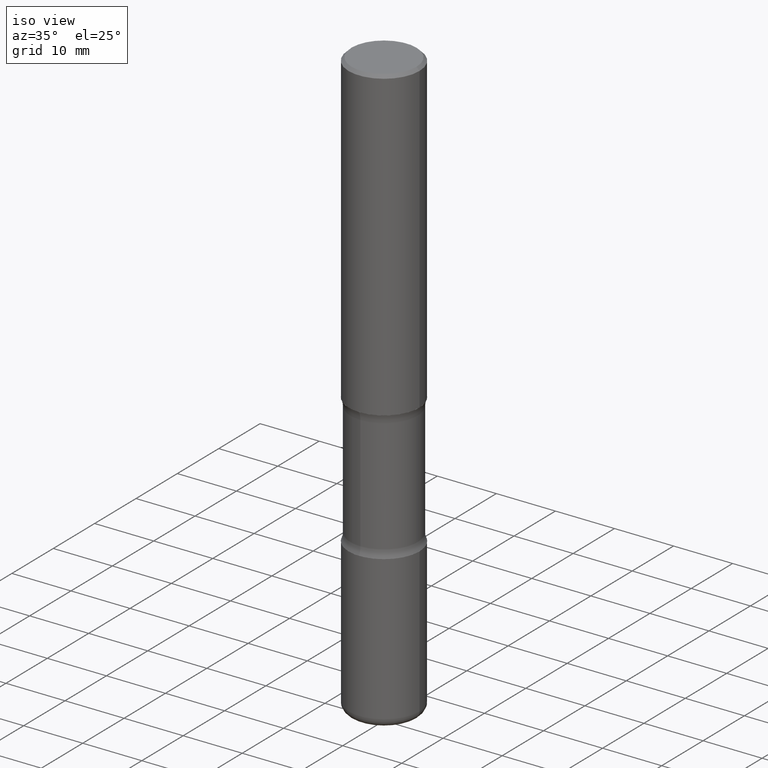
[diagram: clean part render]
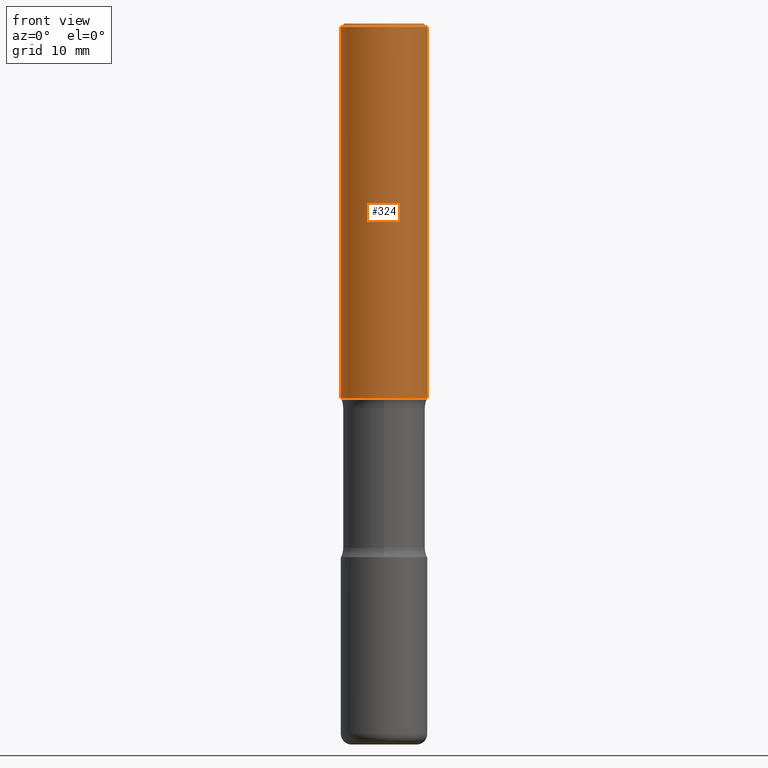
[diagram: tour spotlight — one face highlighted and labeled with its STEP entity id]
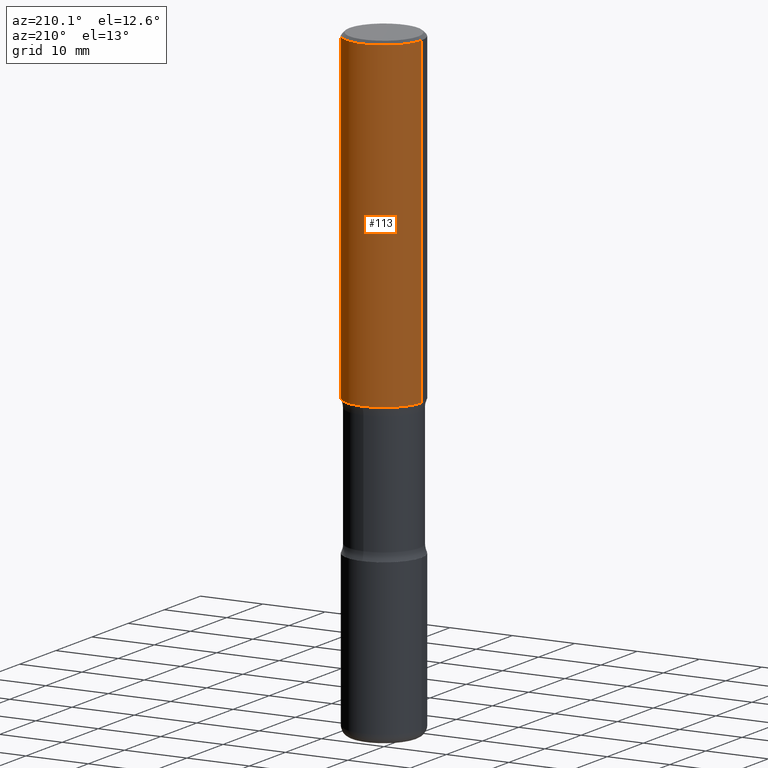
[diagram: tour spotlight — one face highlighted and labeled with its STEP entity id]
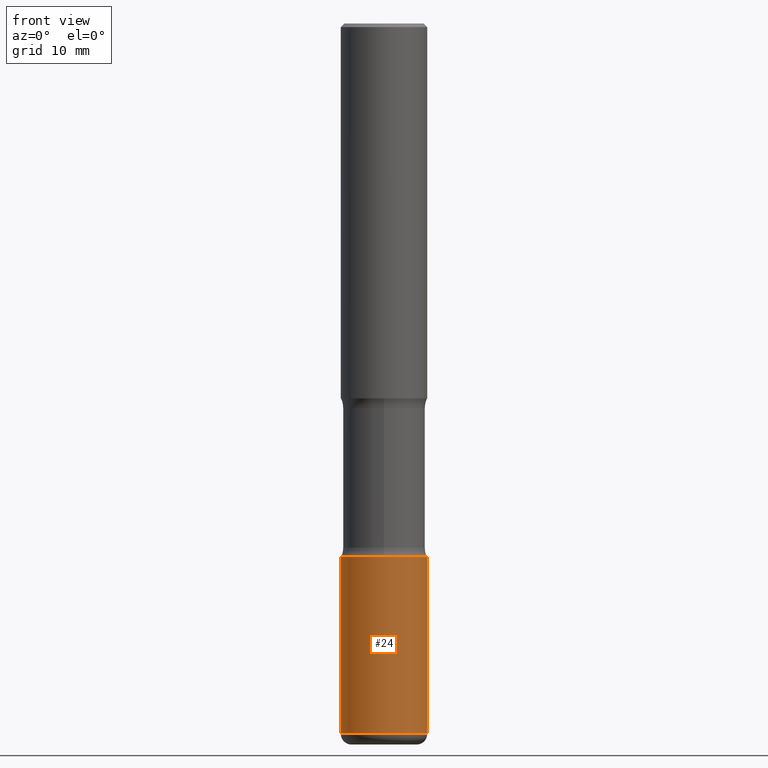
[diagram: tour spotlight — one face highlighted and labeled with its STEP entity id]
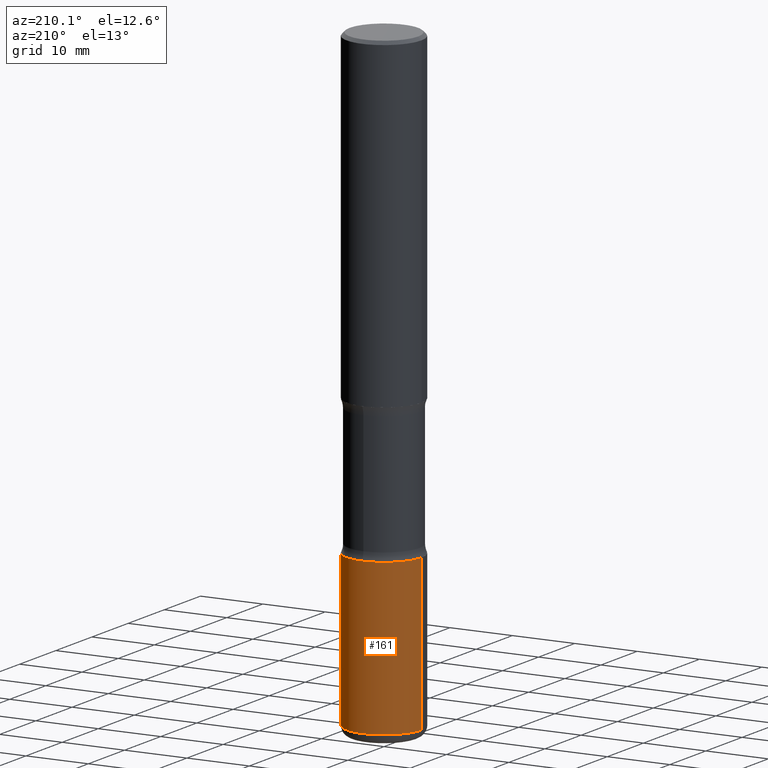
[diagram: tour spotlight — one face highlighted and labeled with its STEP entity id]
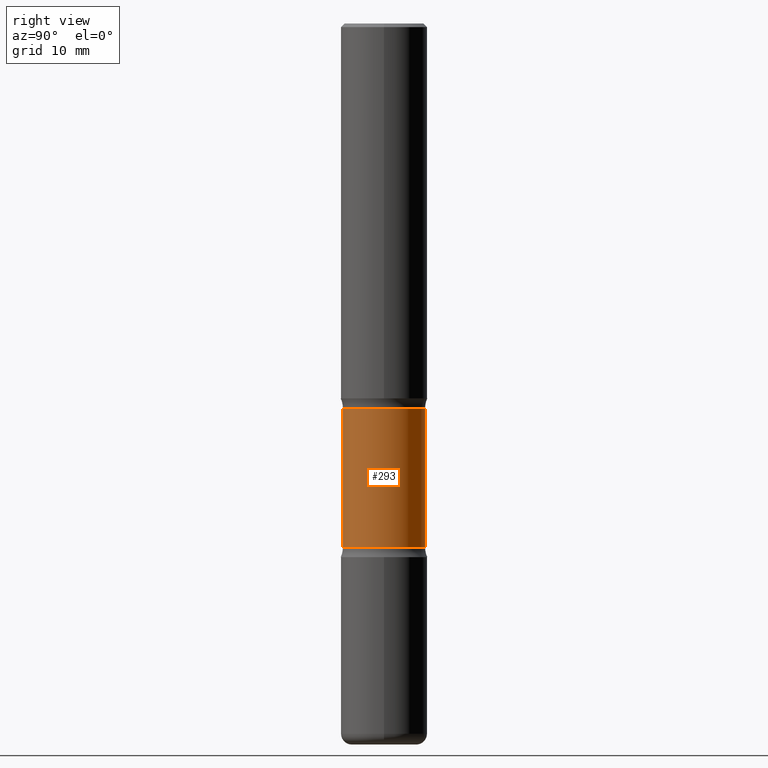
[diagram: tour spotlight — one face highlighted and labeled with its STEP entity id]
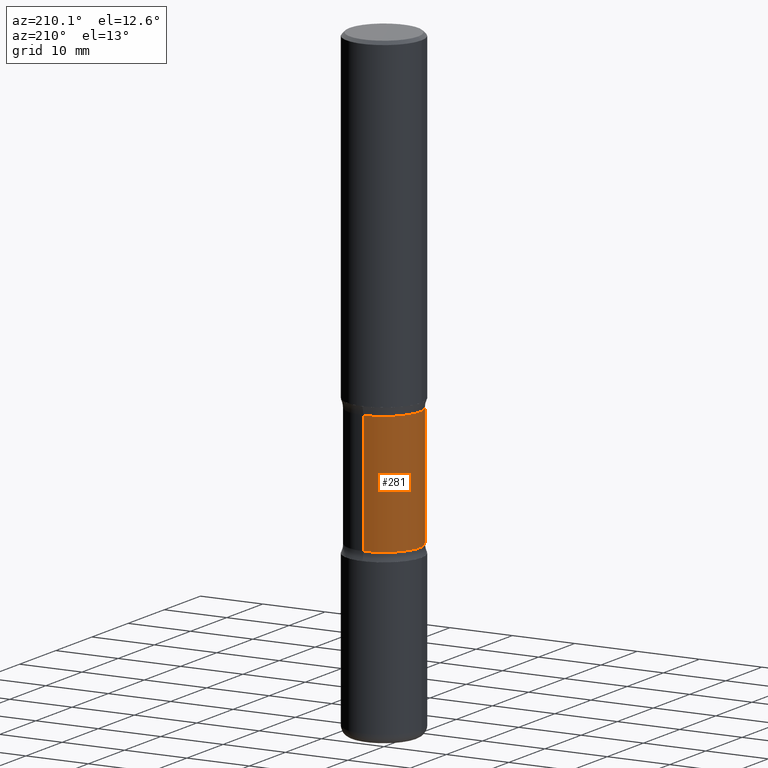
[diagram: tour spotlight — one face highlighted and labeled with its STEP entity id]
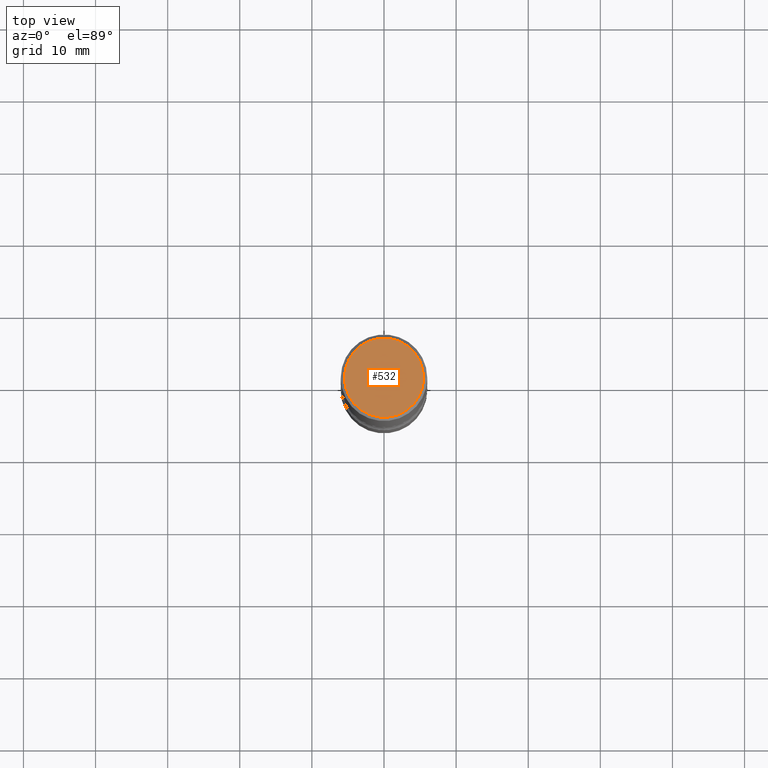
[diagram: tour spotlight — one face highlighted and labeled with its STEP entity id]
A machine part: a face-by-face anatomy tour. The part has 20 B-rep faces; the first image is the clean iso view, then the 7 largest visible faces are spotlighted one at a time (largest first), each with its STEP entity span.

Face 1 — front view, entity #324. In plain terms, the highlighted cylindrical surface (partial cylindrical patch) has radius 5.9995 mm, axis along (-0, 0, 1).
Definition (entity closure, byte-faithful):
#8 = DIRECTION ( 'NONE',  ( -2.445468806185136877E-29, 3.491481338843145188E-15, 1.000000000000000000 ) ) ;
#18 = CARTESIAN_POINT ( 'NONE',  ( 4.890937612370289799E-31, -6.982962677686315028E-17, -0.02000000000000006981 ) ) ;
#50 = CARTESIAN_POINT ( 'NONE',  ( -0.2361999999999998823, 1.579546157692632438E-15, -0.02000000000000006981 ) ) ;
#68 = VERTEX_POINT ( 'NONE', #525 ) ;
#71 = EDGE_CURVE ( 'NONE', #366, #68, #320, .T. ) ;
#75 = DIRECTION ( 'NONE',  ( -2.445468806185136597E-29, 3.491481338843145583E-15, 1.000000000000000000 ) ) ;
#107 = EDGE_LOOP ( 'NONE', ( #376, #503, #512, #435 ) ) ;
#125 = VERTEX_POINT ( 'NONE', #50 ) ;
#127 = CIRCLE ( 'NONE', #297, 0.2361999999999998823 ) ;
#129 = EDGE_CURVE ( 'NONE', #366, #125, #221, .T. ) ;
#158 = CARTESIAN_POINT ( 'NONE',  ( 0.2361999999999999933, -1.649375784469496131E-15, 1.151752954443000088E-29 ) ) ;
#160 = DIRECTION ( 'NONE',  ( 1.000000000000000000, -6.982962677686267499E-15, 0.000000000000000000 ) ) ;
#163 = CARTESIAN_POINT ( 'NONE',  ( 0.000000000000000000, 0.000000000000000000, 0.000000000000000000 ) ) ;
#181 = VECTOR ( 'NONE', #463, 39.37007874015748143 ) ;
#183 = DIRECTION ( 'NONE',  ( -2.445468806185136597E-29, 3.491481338843145583E-15, 1.000000000000000000 ) ) ;
#203 = CARTESIAN_POINT ( 'NONE',  ( -0.2362000000000001598, -1.930493169962915017E-15, -2.047200000000000131 ) ) ;
#209 = CYLINDRICAL_SURFACE ( 'NONE', #416, 0.2361999999999999933 ) ;
#221 = LINE ( 'NONE', #407, #341 ) ;
#263 = DIRECTION ( 'NONE',  ( 1.000000000000000000, -6.982962677686269077E-15, 0.000000000000000000 ) ) ;
#264 = AXIS2_PLACEMENT_3D ( 'NONE', #478, #183, #263 ) ;
#284 = CARTESIAN_POINT ( 'NONE',  ( 0.2361999999999998823, -1.690279253850498179E-15, -0.02000000000000006981 ) ) ;
#294 = DIRECTION ( 'NONE',  ( -2.445468806185136597E-29, 3.491481338843145583E-15, 1.000000000000000000 ) ) ;
#297 = AXIS2_PLACEMENT_3D ( 'NONE', #18, #75, #160 ) ;
#301 = FACE_OUTER_BOUND ( 'NONE', #107, .T. ) ;
#305 = DIRECTION ( 'NONE',  ( 1.000000000000000000, -6.982962677686266711E-15, 4.876176775795936353E-29 ) ) ;
#320 = CIRCLE ( 'NONE', #264, 0.2362000000000001321 ) ;
#324 = ADVANCED_FACE ( 'NONE', ( #301 ), #209, .T. ) ;
#334 = EDGE_CURVE ( 'NONE', #68, #487, #462, .T. ) ;
#341 = VECTOR ( 'NONE', #8, 39.37007874015748143 ) ;
#357 = EDGE_CURVE ( 'NONE', #125, #487, #127, .T. ) ;
#366 = VERTEX_POINT ( 'NONE', #203 ) ;
#376 = ORIENTED_EDGE ( 'NONE', *, *, #129, .F. ) ;
#407 = CARTESIAN_POINT ( 'NONE',  ( -0.2361999999999999933, 1.678301941865356591E-15, -1.161852468318208757E-29 ) ) ;
#416 = AXIS2_PLACEMENT_3D ( 'NONE', #163, #294, #305 ) ;
#435 = ORIENTED_EDGE ( 'NONE', *, *, #357, .F. ) ;
#462 = LINE ( 'NONE', #158, #181 ) ;
#463 = DIRECTION ( 'NONE',  ( -2.445468806185136877E-29, 3.491481338843145188E-15, 1.000000000000000000 ) ) ;
#478 = CARTESIAN_POINT ( 'NONE',  ( 5.006363740022212241E-29, -7.147760596879688202E-15, -2.047200000000000131 ) ) ;
#487 = VERTEX_POINT ( 'NONE', #284 ) ;
#503 = ORIENTED_EDGE ( 'NONE', *, *, #71, .T. ) ;
#512 = ORIENTED_EDGE ( 'NONE', *, *, #334, .T. ) ;
#525 = CARTESIAN_POINT ( 'NONE',  ( 0.2362000000000001321, -8.797136381349186305E-15, -2.047200000000000131 ) ) ;

Face 2 — auxiliary view, entity #113. In plain terms, the highlighted cylindrical surface (partial cylindrical patch) has radius 5.9995 mm, axis along (-0, 0, 1).
Definition (entity closure, byte-faithful):
#5 = AXIS2_PLACEMENT_3D ( 'NONE', #531, #327, #449 ) ;
#8 = DIRECTION ( 'NONE',  ( -2.445468806185136877E-29, 3.491481338843145188E-15, 1.000000000000000000 ) ) ;
#50 = CARTESIAN_POINT ( 'NONE',  ( -0.2361999999999998823, 1.579546157692632438E-15, -0.02000000000000006981 ) ) ;
#68 = VERTEX_POINT ( 'NONE', #525 ) ;
#113 = ADVANCED_FACE ( 'NONE', ( #140 ), #214, .T. ) ;
#125 = VERTEX_POINT ( 'NONE', #50 ) ;
#129 = EDGE_CURVE ( 'NONE', #366, #125, #221, .T. ) ;
#133 = EDGE_CURVE ( 'NONE', #487, #125, #519, .T. ) ;
#140 = FACE_OUTER_BOUND ( 'NONE', #147, .T. ) ;
#147 = EDGE_LOOP ( 'NONE', ( #534, #206, #421, #229 ) ) ;
#158 = CARTESIAN_POINT ( 'NONE',  ( 0.2361999999999999933, -1.649375784469496131E-15, 1.151752954443000088E-29 ) ) ;
#181 = VECTOR ( 'NONE', #463, 39.37007874015748143 ) ;
#194 = DIRECTION ( 'NONE',  ( 1.000000000000000000, -6.982962677686267499E-15, 0.000000000000000000 ) ) ;
#203 = CARTESIAN_POINT ( 'NONE',  ( -0.2362000000000001598, -1.930493169962915017E-15, -2.047200000000000131 ) ) ;
#206 = ORIENTED_EDGE ( 'NONE', *, *, #129, .T. ) ;
#211 = EDGE_CURVE ( 'NONE', #68, #366, #379, .T. ) ;
#214 = CYLINDRICAL_SURFACE ( 'NONE', #413, 0.2361999999999999933 ) ;
#221 = LINE ( 'NONE', #407, #341 ) ;
#229 = ORIENTED_EDGE ( 'NONE', *, *, #334, .F. ) ;
#284 = CARTESIAN_POINT ( 'NONE',  ( 0.2361999999999998823, -1.690279253850498179E-15, -0.02000000000000006981 ) ) ;
#310 = DIRECTION ( 'NONE',  ( -2.445468806185136597E-29, 3.491481338843145583E-15, 1.000000000000000000 ) ) ;
#316 = CARTESIAN_POINT ( 'NONE',  ( 0.000000000000000000, 0.000000000000000000, 0.000000000000000000 ) ) ;
#327 = DIRECTION ( 'NONE',  ( -2.445468806185136597E-29, 3.491481338843145583E-15, 1.000000000000000000 ) ) ;
#334 = EDGE_CURVE ( 'NONE', #68, #487, #462, .T. ) ;
#341 = VECTOR ( 'NONE', #8, 39.37007874015748143 ) ;
#356 = AXIS2_PLACEMENT_3D ( 'NONE', #476, #409, #194 ) ;
#366 = VERTEX_POINT ( 'NONE', #203 ) ;
#379 = CIRCLE ( 'NONE', #5, 0.2362000000000001321 ) ;
#407 = CARTESIAN_POINT ( 'NONE',  ( -0.2361999999999999933, 1.678301941865356591E-15, -1.161852468318208757E-29 ) ) ;
#409 = DIRECTION ( 'NONE',  ( -2.445468806185136597E-29, 3.491481338843145583E-15, 1.000000000000000000 ) ) ;
#413 = AXIS2_PLACEMENT_3D ( 'NONE', #316, #310, #484 ) ;
#421 = ORIENTED_EDGE ( 'NONE', *, *, #133, .F. ) ;
#449 = DIRECTION ( 'NONE',  ( 1.000000000000000000, -6.982962677686269077E-15, 0.000000000000000000 ) ) ;
#462 = LINE ( 'NONE', #158, #181 ) ;
#463 = DIRECTION ( 'NONE',  ( -2.445468806185136877E-29, 3.491481338843145188E-15, 1.000000000000000000 ) ) ;
#476 = CARTESIAN_POINT ( 'NONE',  ( 4.890937612370289799E-31, -6.982962677686315028E-17, -0.02000000000000006981 ) ) ;
#484 = DIRECTION ( 'NONE',  ( 1.000000000000000000, -6.982962677686266711E-15, 4.876176775795936353E-29 ) ) ;
#487 = VERTEX_POINT ( 'NONE', #284 ) ;
#519 = CIRCLE ( 'NONE', #356, 0.2361999999999998823 ) ;
#525 = CARTESIAN_POINT ( 'NONE',  ( 0.2362000000000001321, -8.797136381349186305E-15, -2.047200000000000131 ) ) ;
#531 = CARTESIAN_POINT ( 'NONE',  ( 5.006363740022212241E-29, -7.147760596879688202E-15, -2.047200000000000131 ) ) ;
#534 = ORIENTED_EDGE ( 'NONE', *, *, #211, .T. ) ;

Face 3 — front view, entity #24. In plain terms, the highlighted cylindrical surface (partial cylindrical patch) has radius 5.9995 mm, axis along (-0, 0, 1).
Definition (entity closure, byte-faithful):
#24 = ADVANCED_FACE ( 'NONE', ( #388 ), #202, .T. ) ;
#32 = DIRECTION ( 'NONE',  ( -2.445468806185136877E-29, 3.491481338843145188E-15, 1.000000000000000000 ) ) ;
#91 = EDGE_CURVE ( 'NONE', #558, #306, #423, .T. ) ;
#96 = EDGE_LOOP ( 'NONE', ( #500, #240, #323, #331 ) ) ;
#98 = VECTOR ( 'NONE', #499, 39.37007874015748143 ) ;
#115 = DIRECTION ( 'NONE',  ( -2.445468806185136597E-29, 3.491481338843145583E-15, 1.000000000000000000 ) ) ;
#121 = CARTESIAN_POINT ( 'NONE',  ( -0.2362000000000001321, -1.017754666637736977E-14, -2.913400000000000212 ) ) ;
#202 = CYLINDRICAL_SURFACE ( 'NONE', #312, 0.2362000000000001598 ) ;
#207 = AXIS2_PLACEMENT_3D ( 'NONE', #526, #314, #483 ) ;
#215 = AXIS2_PLACEMENT_3D ( 'NONE', #450, #115, #288 ) ;
#240 = ORIENTED_EDGE ( 'NONE', *, *, #448, .T. ) ;
#244 = VECTOR ( 'NONE', #32, 39.37007874015748143 ) ;
#251 = LINE ( 'NONE', #433, #244 ) ;
#257 = DIRECTION ( 'NONE',  ( -2.445468806185136597E-29, 3.491481338843145583E-15, 1.000000000000000000 ) ) ;
#288 = DIRECTION ( 'NONE',  ( 1.000000000000000000, -6.982962677686266711E-15, 0.000000000000000000 ) ) ;
#306 = VERTEX_POINT ( 'NONE', #387 ) ;
#312 = AXIS2_PLACEMENT_3D ( 'NONE', #472, #257, #436 ) ;
#314 = DIRECTION ( 'NONE',  ( -2.445468806185136597E-29, 3.491481338843145583E-15, 1.000000000000000000 ) ) ;
#323 = ORIENTED_EDGE ( 'NONE', *, *, #427, .T. ) ;
#331 = ORIENTED_EDGE ( 'NONE', *, *, #91, .F. ) ;
#387 = CARTESIAN_POINT ( 'NONE',  ( 0.2362000000000001321, -1.182145751705511899E-14, -2.913400000000000212 ) ) ;
#388 = FACE_OUTER_BOUND ( 'NONE', #96, .T. ) ;
#393 = VERTEX_POINT ( 'NONE', #513 ) ;
#398 = LINE ( 'NONE', #492, #98 ) ;
#415 = CARTESIAN_POINT ( 'NONE',  ( -0.2362000000000000766, -1.186131354203447347E-14, -3.877899999999999014 ) ) ;
#423 = CIRCLE ( 'NONE', #207, 0.2362000000000001321 ) ;
#427 = EDGE_CURVE ( 'NONE', #393, #306, #251, .T. ) ;
#428 = EDGE_CURVE ( 'NONE', #547, #558, #398, .T. ) ;
#433 = CARTESIAN_POINT ( 'NONE',  ( 0.2362000000000001598, -1.649375784469497314E-15, 1.151752954443000929E-29 ) ) ;
#436 = DIRECTION ( 'NONE',  ( 1.000000000000000000, -6.982962677686266711E-15, 4.876176775795936353E-29 ) ) ;
#448 = EDGE_CURVE ( 'NONE', #547, #393, #465, .T. ) ;
#450 = CARTESIAN_POINT ( 'NONE',  ( 9.483283483505337853E-29, -1.353961548389983144E-14, -3.877899999999999014 ) ) ;
#465 = CIRCLE ( 'NONE', #215, 0.2362000000000002153 ) ;
#472 = CARTESIAN_POINT ( 'NONE',  ( 0.000000000000000000, 0.000000000000000000, 0.000000000000000000 ) ) ;
#483 = DIRECTION ( 'NONE',  ( 1.000000000000000000, -6.982962677686269077E-15, 0.000000000000000000 ) ) ;
#492 = CARTESIAN_POINT ( 'NONE',  ( -0.2362000000000001598, 1.678301941865357775E-15, -1.161852468318209598E-29 ) ) ;
#499 = DIRECTION ( 'NONE',  ( -2.445468806185136877E-29, 3.491481338843145188E-15, 1.000000000000000000 ) ) ;
#500 = ORIENTED_EDGE ( 'NONE', *, *, #428, .F. ) ;
#513 = CARTESIAN_POINT ( 'NONE',  ( 0.2362000000000000766, -1.518899126836932954E-14, -3.877899999999999014 ) ) ;
#526 = CARTESIAN_POINT ( 'NONE',  ( 7.124628819939777829E-29, -1.017208173258562247E-14, -2.913400000000000212 ) ) ;
#547 = VERTEX_POINT ( 'NONE', #415 ) ;
#558 = VERTEX_POINT ( 'NONE', #121 ) ;

Face 4 — auxiliary view, entity #161. In plain terms, the highlighted cylindrical surface (partial cylindrical patch) has radius 5.9995 mm, axis along (-0, 0, 1).
Definition (entity closure, byte-faithful):
#11 = CARTESIAN_POINT ( 'NONE',  ( 9.483283483505337853E-29, -1.353961548389983144E-14, -3.877899999999999014 ) ) ;
#22 = DIRECTION ( 'NONE',  ( -2.445468806185136597E-29, 3.491481338843145583E-15, 1.000000000000000000 ) ) ;
#32 = DIRECTION ( 'NONE',  ( -2.445468806185136877E-29, 3.491481338843145188E-15, 1.000000000000000000 ) ) ;
#52 = AXIS2_PLACEMENT_3D ( 'NONE', #11, #22, #67 ) ;
#67 = DIRECTION ( 'NONE',  ( 1.000000000000000000, -6.982962677686266711E-15, 0.000000000000000000 ) ) ;
#98 = VECTOR ( 'NONE', #499, 39.37007874015748143 ) ;
#121 = CARTESIAN_POINT ( 'NONE',  ( -0.2362000000000001321, -1.017754666637736977E-14, -2.913400000000000212 ) ) ;
#152 = CYLINDRICAL_SURFACE ( 'NONE', #253, 0.2362000000000001598 ) ;
#154 = CIRCLE ( 'NONE', #330, 0.2362000000000001321 ) ;
#161 = ADVANCED_FACE ( 'NONE', ( #420 ), #152, .T. ) ;
#223 = EDGE_CURVE ( 'NONE', #306, #558, #154, .T. ) ;
#231 = DIRECTION ( 'NONE',  ( 1.000000000000000000, -6.982962677686266711E-15, 4.876176775795936353E-29 ) ) ;
#237 = ORIENTED_EDGE ( 'NONE', *, *, #223, .F. ) ;
#244 = VECTOR ( 'NONE', #32, 39.37007874015748143 ) ;
#251 = LINE ( 'NONE', #433, #244 ) ;
#253 = AXIS2_PLACEMENT_3D ( 'NONE', #411, #283, #231 ) ;
#265 = CIRCLE ( 'NONE', #52, 0.2362000000000002153 ) ;
#283 = DIRECTION ( 'NONE',  ( -2.445468806185136597E-29, 3.491481338843145583E-15, 1.000000000000000000 ) ) ;
#306 = VERTEX_POINT ( 'NONE', #387 ) ;
#330 = AXIS2_PLACEMENT_3D ( 'NONE', #367, #494, #451 ) ;
#344 = ORIENTED_EDGE ( 'NONE', *, *, #493, .T. ) ;
#367 = CARTESIAN_POINT ( 'NONE',  ( 7.124628819939777829E-29, -1.017208173258562247E-14, -2.913400000000000212 ) ) ;
#380 = ORIENTED_EDGE ( 'NONE', *, *, #427, .F. ) ;
#387 = CARTESIAN_POINT ( 'NONE',  ( 0.2362000000000001321, -1.182145751705511899E-14, -2.913400000000000212 ) ) ;
#393 = VERTEX_POINT ( 'NONE', #513 ) ;
#398 = LINE ( 'NONE', #492, #98 ) ;
#411 = CARTESIAN_POINT ( 'NONE',  ( 0.000000000000000000, 0.000000000000000000, 0.000000000000000000 ) ) ;
#415 = CARTESIAN_POINT ( 'NONE',  ( -0.2362000000000000766, -1.186131354203447347E-14, -3.877899999999999014 ) ) ;
#420 = FACE_OUTER_BOUND ( 'NONE', #485, .T. ) ;
#427 = EDGE_CURVE ( 'NONE', #393, #306, #251, .T. ) ;
#428 = EDGE_CURVE ( 'NONE', #547, #558, #398, .T. ) ;
#431 = ORIENTED_EDGE ( 'NONE', *, *, #428, .T. ) ;
#433 = CARTESIAN_POINT ( 'NONE',  ( 0.2362000000000001598, -1.649375784469497314E-15, 1.151752954443000929E-29 ) ) ;
#451 = DIRECTION ( 'NONE',  ( 1.000000000000000000, -6.982962677686269077E-15, 0.000000000000000000 ) ) ;
#485 = EDGE_LOOP ( 'NONE', ( #344, #431, #237, #380 ) ) ;
#492 = CARTESIAN_POINT ( 'NONE',  ( -0.2362000000000001598, 1.678301941865357775E-15, -1.161852468318209598E-29 ) ) ;
#493 = EDGE_CURVE ( 'NONE', #393, #547, #265, .T. ) ;
#494 = DIRECTION ( 'NONE',  ( -2.445468806185136597E-29, 3.491481338843145583E-15, 1.000000000000000000 ) ) ;
#499 = DIRECTION ( 'NONE',  ( -2.445468806185136877E-29, 3.491481338843145188E-15, 1.000000000000000000 ) ) ;
#513 = CARTESIAN_POINT ( 'NONE',  ( 0.2362000000000000766, -1.518899126836932954E-14, -3.877899999999999014 ) ) ;
#547 = VERTEX_POINT ( 'NONE', #415 ) ;
#558 = VERTEX_POINT ( 'NONE', #121 ) ;

Face 5 — right view, entity #293. In plain terms, the highlighted cylindrical surface (partial cylindrical patch) has radius 5.6998 mm, axis along (0, -0, -1).
Definition (entity closure, byte-faithful):
#13 = AXIS2_PLACEMENT_3D ( 'NONE', #61, #226, #185 ) ;
#19 = CARTESIAN_POINT ( 'NONE',  ( 9.710227154047748282E-29, -1.362793696358492956E-14, -3.937000000000000277 ) ) ;
#21 = CARTESIAN_POINT ( 'NONE',  ( -1.579972688886713168E-15, -0.2244000000000099804, -2.860383398826404466 ) ) ;
#27 = EDGE_CURVE ( 'NONE', #47, #197, #34, .T. ) ;
#34 = LINE ( 'NONE', #430, #63 ) ;
#47 = VERTEX_POINT ( 'NONE', #385 ) ;
#54 = CARTESIAN_POINT ( 'NONE',  ( -1.539495750699834052E-15, -0.2244000000000135608, -3.936999999999999389 ) ) ;
#58 = CARTESIAN_POINT ( 'NONE',  ( -1.579972688886734072E-15, -0.2244000000000073713, -2.100216601173594544 ) ) ;
#61 = CARTESIAN_POINT ( 'NONE',  ( 6.990709676060807691E-29, -9.993088279580958225E-15, -2.860383398826405354 ) ) ;
#63 = VECTOR ( 'NONE', #554, 39.37007874015748143 ) ;
#81 = ORIENTED_EDGE ( 'NONE', *, *, #378, .T. ) ;
#105 = FACE_OUTER_BOUND ( 'NONE', #250, .T. ) ;
#151 = EDGE_CURVE ( 'NONE', #197, #210, #368, .T. ) ;
#170 = CARTESIAN_POINT ( 'NONE',  ( 5.070539682259229331E-29, -7.426630284172150130E-15, -2.100216601173595432 ) ) ;
#171 = ORIENTED_EDGE ( 'NONE', *, *, #151, .F. ) ;
#176 = DIRECTION ( 'NONE',  ( 6.982962677686265922E-15, 1.000000000000000000, -3.652203200085913934E-15 ) ) ;
#185 = DIRECTION ( 'NONE',  ( 6.982962677686265922E-15, 1.000000000000000000, -2.434802133390609421E-15 ) ) ;
#191 = AXIS2_PLACEMENT_3D ( 'NONE', #170, #339, #176 ) ;
#197 = VERTEX_POINT ( 'NONE', #329 ) ;
#210 = VERTEX_POINT ( 'NONE', #21 ) ;
#226 = DIRECTION ( 'NONE',  ( 2.525985086076564115E-29, -3.376177443336566513E-15, -1.000000000000000000 ) ) ;
#233 = EDGE_CURVE ( 'NONE', #458, #210, #454, .T. ) ;
#239 = DIRECTION ( 'NONE',  ( 2.525985086076564115E-29, -3.376177443336566513E-15, -1.000000000000000000 ) ) ;
#250 = EDGE_LOOP ( 'NONE', ( #81, #418, #171, #471 ) ) ;
#273 = DIRECTION ( 'NONE',  ( 2.525985086076564115E-29, -3.376177443336566513E-15, -1.000000000000000000 ) ) ;
#293 = ADVANCED_FACE ( 'NONE', ( #105 ), #459, .T. ) ;
#308 = VECTOR ( 'NONE', #273, 39.37007874015748143 ) ;
#329 = CARTESIAN_POINT ( 'NONE',  ( 1.566976824872867821E-15, 0.2243999999999899686, -2.860383398826405799 ) ) ;
#332 = CIRCLE ( 'NONE', #191, 0.2243999999999999606 ) ;
#339 = DIRECTION ( 'NONE',  ( 2.525985086076564115E-29, -3.376177443336566513E-15, -1.000000000000000000 ) ) ;
#362 = DIRECTION ( 'NONE',  ( 6.982962677686265922E-15, 1.000000000000000000, -2.434802133390609815E-15 ) ) ;
#368 = CIRCLE ( 'NONE', #13, 0.2243999999999999606 ) ;
#378 = EDGE_CURVE ( 'NONE', #47, #458, #332, .T. ) ;
#385 = CARTESIAN_POINT ( 'NONE',  ( 1.566976824872848494E-15, 0.2243999999999925499, -2.100216601173596320 ) ) ;
#418 = ORIENTED_EDGE ( 'NONE', *, *, #233, .T. ) ;
#430 = CARTESIAN_POINT ( 'NONE',  ( 1.566976824872894642E-15, 0.2243999999999863049, -3.937000000000000721 ) ) ;
#454 = LINE ( 'NONE', #54, #308 ) ;
#458 = VERTEX_POINT ( 'NONE', #58 ) ;
#459 = CYLINDRICAL_SURFACE ( 'NONE', #527, 0.2243999999999999329 ) ;
#471 = ORIENTED_EDGE ( 'NONE', *, *, #27, .F. ) ;
#527 = AXIS2_PLACEMENT_3D ( 'NONE', #19, #239, #362 ) ;
#554 = DIRECTION ( 'NONE',  ( 2.525985086076564115E-29, -3.376177443336566513E-15, -1.000000000000000000 ) ) ;

Face 6 — auxiliary view, entity #281. In plain terms, the highlighted cylindrical surface (partial cylindrical patch) has radius 5.6998 mm, axis along (0, -0, -1).
Definition (entity closure, byte-faithful):
#15 = CIRCLE ( 'NONE', #381, 0.2243999999999999606 ) ;
#21 = CARTESIAN_POINT ( 'NONE',  ( -1.579972688886713168E-15, -0.2244000000000099804, -2.860383398826404466 ) ) ;
#27 = EDGE_CURVE ( 'NONE', #47, #197, #34, .T. ) ;
#29 = ORIENTED_EDGE ( 'NONE', *, *, #27, .T. ) ;
#34 = LINE ( 'NONE', #430, #63 ) ;
#47 = VERTEX_POINT ( 'NONE', #385 ) ;
#54 = CARTESIAN_POINT ( 'NONE',  ( -1.539495750699834052E-15, -0.2244000000000135608, -3.936999999999999389 ) ) ;
#58 = CARTESIAN_POINT ( 'NONE',  ( -1.579972688886734072E-15, -0.2244000000000073713, -2.100216601173594544 ) ) ;
#63 = VECTOR ( 'NONE', #554, 39.37007874015748143 ) ;
#65 = CIRCLE ( 'NONE', #208, 0.2243999999999999606 ) ;
#111 = CYLINDRICAL_SURFACE ( 'NONE', #359, 0.2243999999999999329 ) ;
#156 = ORIENTED_EDGE ( 'NONE', *, *, #261, .T. ) ;
#188 = DIRECTION ( 'NONE',  ( 6.982962677686265922E-15, 1.000000000000000000, -2.434802133390609815E-15 ) ) ;
#189 = DIRECTION ( 'NONE',  ( 6.982962677686265922E-15, 1.000000000000000000, -2.434802133390609421E-15 ) ) ;
#197 = VERTEX_POINT ( 'NONE', #329 ) ;
#208 = AXIS2_PLACEMENT_3D ( 'NONE', #491, #278, #235 ) ;
#210 = VERTEX_POINT ( 'NONE', #21 ) ;
#233 = EDGE_CURVE ( 'NONE', #458, #210, #454, .T. ) ;
#235 = DIRECTION ( 'NONE',  ( 6.982962677686265922E-15, 1.000000000000000000, -3.652203200085913934E-15 ) ) ;
#261 = EDGE_CURVE ( 'NONE', #458, #47, #65, .T. ) ;
#268 = ORIENTED_EDGE ( 'NONE', *, *, #515, .F. ) ;
#273 = DIRECTION ( 'NONE',  ( 2.525985086076564115E-29, -3.376177443336566513E-15, -1.000000000000000000 ) ) ;
#278 = DIRECTION ( 'NONE',  ( 2.525985086076564115E-29, -3.376177443336566513E-15, -1.000000000000000000 ) ) ;
#281 = ADVANCED_FACE ( 'NONE', ( #498 ), #111, .T. ) ;
#290 = DIRECTION ( 'NONE',  ( 2.525985086076564115E-29, -3.376177443336566513E-15, -1.000000000000000000 ) ) ;
#308 = VECTOR ( 'NONE', #273, 39.37007874015748143 ) ;
#325 = DIRECTION ( 'NONE',  ( 2.525985086076564115E-29, -3.376177443336566513E-15, -1.000000000000000000 ) ) ;
#329 = CARTESIAN_POINT ( 'NONE',  ( 1.566976824872867821E-15, 0.2243999999999899686, -2.860383398826405799 ) ) ;
#359 = AXIS2_PLACEMENT_3D ( 'NONE', #417, #325, #188 ) ;
#381 = AXIS2_PLACEMENT_3D ( 'NONE', #460, #290, #189 ) ;
#385 = CARTESIAN_POINT ( 'NONE',  ( 1.566976824872848494E-15, 0.2243999999999925499, -2.100216601173596320 ) ) ;
#417 = CARTESIAN_POINT ( 'NONE',  ( 9.710227154047748282E-29, -1.362793696358492956E-14, -3.937000000000000277 ) ) ;
#430 = CARTESIAN_POINT ( 'NONE',  ( 1.566976824872894642E-15, 0.2243999999999863049, -3.937000000000000721 ) ) ;
#443 = ORIENTED_EDGE ( 'NONE', *, *, #233, .F. ) ;
#454 = LINE ( 'NONE', #54, #308 ) ;
#458 = VERTEX_POINT ( 'NONE', #58 ) ;
#460 = CARTESIAN_POINT ( 'NONE',  ( 6.990709676060807691E-29, -9.993088279580958225E-15, -2.860383398826405354 ) ) ;
#491 = CARTESIAN_POINT ( 'NONE',  ( 5.070539682259229331E-29, -7.426630284172150130E-15, -2.100216601173595432 ) ) ;
#498 = FACE_OUTER_BOUND ( 'NONE', #560, .T. ) ;
#515 = EDGE_CURVE ( 'NONE', #210, #197, #15, .T. ) ;
#554 = DIRECTION ( 'NONE',  ( 2.525985086076564115E-29, -3.376177443336566513E-15, -1.000000000000000000 ) ) ;
#560 = EDGE_LOOP ( 'NONE', ( #443, #156, #29, #268 ) ) ;

Face 7 — top view, entity #532. In plain terms, the highlighted planar face has unit normal (0, -0, -1).
Definition (entity closure, byte-faithful):
#14 = AXIS2_PLACEMENT_3D ( 'NONE', #132, #217, #355 ) ;
#46 = DIRECTION ( 'NONE',  ( -2.445468806185136597E-29, 3.491481338843145583E-15, 1.000000000000000000 ) ) ;
#48 = EDGE_CURVE ( 'NONE', #122, #124, #51, .T. ) ;
#51 = CIRCLE ( 'NONE', #390, 0.2161999999999998368 ) ;
#77 = EDGE_CURVE ( 'NONE', #124, #122, #126, .T. ) ;
#94 = CARTESIAN_POINT ( 'NONE',  ( -0.2161999999999998368, 1.544631344304201183E-15, 4.268512490089730842E-18 ) ) ;
#122 = VERTEX_POINT ( 'NONE', #94 ) ;
#124 = VERTEX_POINT ( 'NONE', #271 ) ;
#126 = CIRCLE ( 'NONE', #14, 0.2161999999999998368 ) ;
#130 = ORIENTED_EDGE ( 'NONE', *, *, #77, .T. ) ;
#132 = CARTESIAN_POINT ( 'NONE',  ( -1.043851414335219820E-46, 1.490343170380447200E-32, 4.268512490100411279E-18 ) ) ;
#164 = CARTESIAN_POINT ( 'NONE',  ( -1.043851414335219820E-46, 1.490343170380447200E-32, 4.268512490100411279E-18 ) ) ;
#199 = AXIS2_PLACEMENT_3D ( 'NONE', #224, #537, #326 ) ;
#217 = DIRECTION ( 'NONE',  ( -2.445468806185136597E-29, 3.491481338843145583E-15, 1.000000000000000000 ) ) ;
#224 = CARTESIAN_POINT ( 'NONE',  ( 1.509716530915769534E-15, 0.2161999999999998368, -7.527240092128373149E-16 ) ) ;
#271 = CARTESIAN_POINT ( 'NONE',  ( 0.2161999999999998368, -1.586759460484351002E-15, 4.268512490111238857E-18 ) ) ;
#322 = EDGE_LOOP ( 'NONE', ( #371, #130 ) ) ;
#326 = DIRECTION ( 'NONE',  ( -1.000000000000000000, 6.982962677686265922E-15, -4.876176775795935793E-29 ) ) ;
#333 = FACE_OUTER_BOUND ( 'NONE', #322, .T. ) ;
#354 = DIRECTION ( 'NONE',  ( 1.000000000000000000, -6.982962677686266711E-15, 4.876217060660159599E-29 ) ) ;
#355 = DIRECTION ( 'NONE',  ( 1.000000000000000000, -6.982962677686266711E-15, 4.876217060660159599E-29 ) ) ;
#371 = ORIENTED_EDGE ( 'NONE', *, *, #48, .T. ) ;
#375 = PLANE ( 'NONE',  #199 ) ;
#390 = AXIS2_PLACEMENT_3D ( 'NONE', #164, #46, #354 ) ;
#532 = ADVANCED_FACE ( 'NONE', ( #333 ), #375, .F. ) ;
#537 = DIRECTION ( 'NONE',  ( 2.438088387897960049E-29, -3.491481338843145188E-15, -1.000000000000000000 ) ) ;